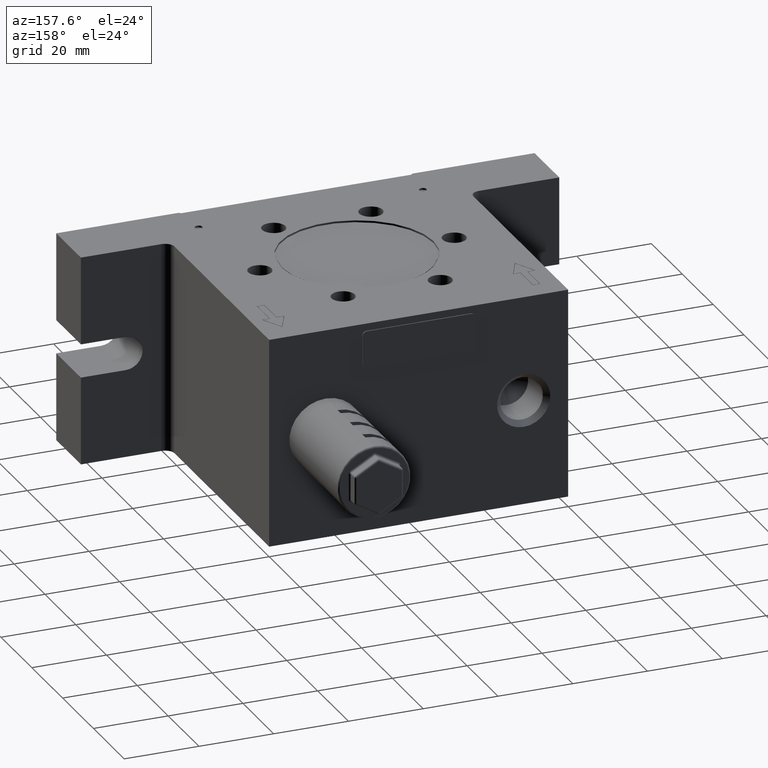
[diagram: clean part render]
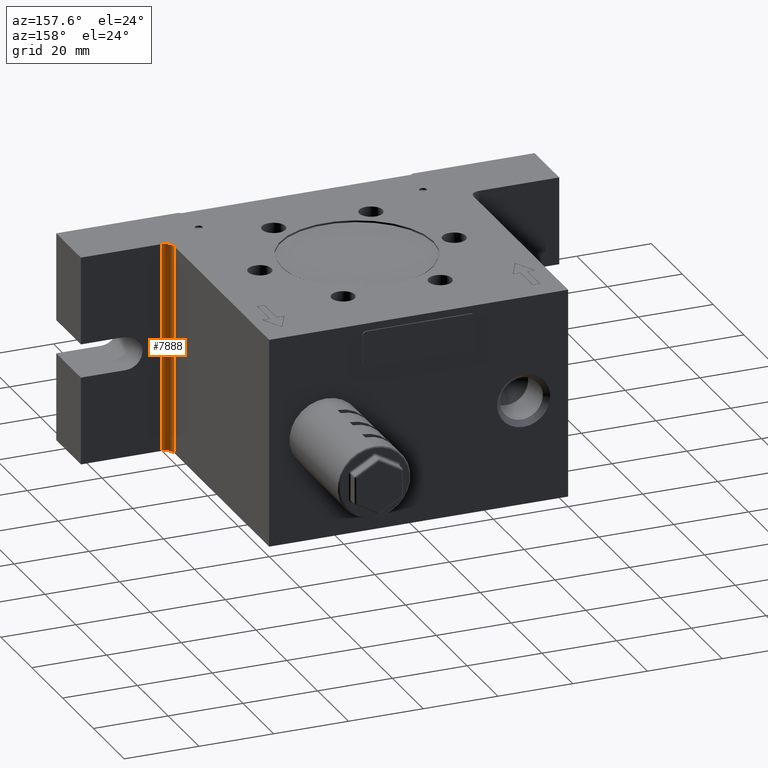
[diagram: same view with one face highlighted and labeled with its STEP entity id]
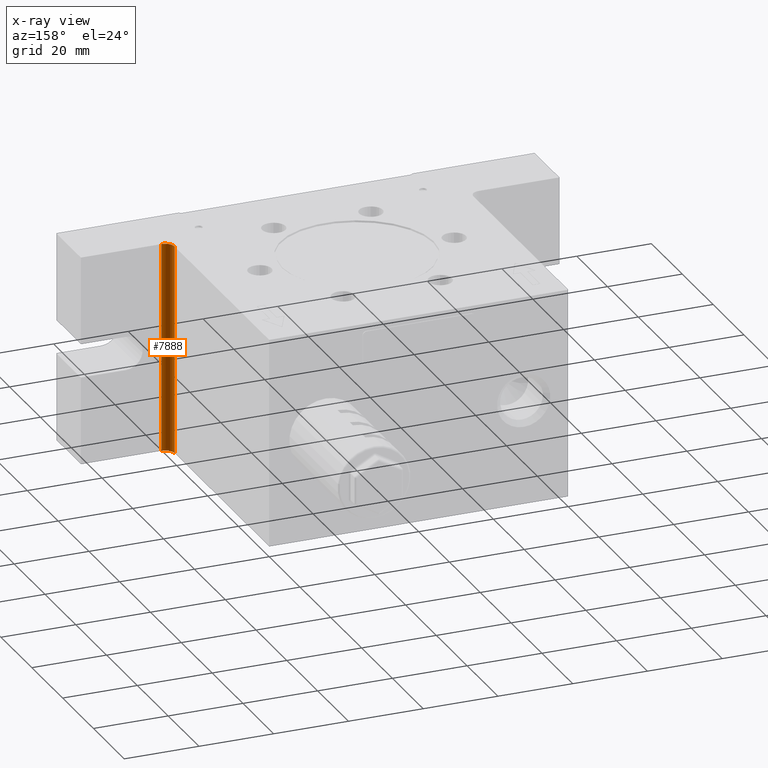
[diagram: x-ray of the same camera — body ghosted, the highlighted face saturated]
A machine part, auxiliary view. The second image highlights one B-rep face of the part: STEP entity #7888.
The next image is the same camera in x-ray: the body ghosted, the highlighted face saturated — about 0% of this face is hidden behind the body in this view.
In plain terms, the highlighted cylindrical surface (edge-blend (fillet) strip) has radius 2.5 mm, axis along (0, 0, -1).
Its self-contained STEP definition (entity closure, byte-faithful):
#212 = VERTEX_POINT ( 'NONE', #7915 ) ;
#536 = CARTESIAN_POINT ( 'NONE',  ( 42.50000000000000000, -21.50000000000000000, -28.00000000000000000 ) ) ;
#851 = LINE ( 'NONE', #16173, #9256 ) ;
#952 = CARTESIAN_POINT ( 'NONE',  ( 42.50000000000000000, -24.00000000000000000, 28.00000000000000000 ) ) ;
#1030 = ORIENTED_EDGE ( 'NONE', *, *, #12170, .F. ) ;
#1037 = CARTESIAN_POINT ( 'NONE',  ( 40.00000000000000000, -21.50000000000000000, 28.00000000000000000 ) ) ;
#1146 = EDGE_CURVE ( 'NONE', #212, #8416, #16660, .T. ) ;
#2496 = VERTEX_POINT ( 'NONE', #1037 ) ;
#2811 = CYLINDRICAL_SURFACE ( 'NONE', #12307, 2.500000000000002200 ) ;
#3250 = DIRECTION ( 'NONE',  ( -1.000000000000000000, 0.0000000000000000000, 0.0000000000000000000 ) ) ;
#3633 = DIRECTION ( 'NONE',  ( 0.0000000000000000000, 0.0000000000000000000, -1.000000000000000000 ) ) ;
#3904 = DIRECTION ( 'NONE',  ( -1.000000000000000000, 0.0000000000000000000, 0.0000000000000000000 ) ) ;
#3978 = DIRECTION ( 'NONE',  ( 0.0000000000000000000, 0.0000000000000000000, -1.000000000000000000 ) ) ;
#5003 = DIRECTION ( 'NONE',  ( -0.0000000000000000000, -0.0000000000000000000, 1.000000000000000000 ) ) ;
#5604 = EDGE_CURVE ( 'NONE', #8416, #2496, #12551, .T. ) ;
#5952 = ORIENTED_EDGE ( 'NONE', *, *, #5604, .F. ) ;
#6088 = CARTESIAN_POINT ( 'NONE',  ( 42.50000000000000000, -24.00000000000000000, 28.00000000000000000 ) ) ;
#6159 = DIRECTION ( 'NONE',  ( 0.0000000000000000000, 0.0000000000000000000, 1.000000000000000000 ) ) ;
#6782 = EDGE_CURVE ( 'NONE', #20316, #212, #19631, .T. ) ;
#7888 = ADVANCED_FACE ( 'NONE', ( #21701 ), #2811, .F. ) ;
#7915 = CARTESIAN_POINT ( 'NONE',  ( 42.50000000000000000, -24.00000000000000000, -28.00000000000000000 ) ) ;
#8416 = VERTEX_POINT ( 'NONE', #952 ) ;
#8490 = DIRECTION ( 'NONE',  ( -1.000000000000000000, 0.0000000000000000000, 0.0000000000000000000 ) ) ;
#8708 = CARTESIAN_POINT ( 'NONE',  ( 42.50000000000000000, -21.50000000000000000, 28.00000000000000000 ) ) ;
#9256 = VECTOR ( 'NONE', #17953, 1000.000000000000000 ) ;
#10030 = EDGE_LOOP ( 'NONE', ( #13682, #1030, #5952, #13986 ) ) ;
#10095 = VECTOR ( 'NONE', #6159, 1000.000000000000000 ) ;
#12170 = EDGE_CURVE ( 'NONE', #2496, #20316, #851, .T. ) ;
#12307 = AXIS2_PLACEMENT_3D ( 'NONE', #536, #3978, #3904 ) ;
#12551 = CIRCLE ( 'NONE', #21658, 2.500000000000002200 ) ;
#13682 = ORIENTED_EDGE ( 'NONE', *, *, #6782, .F. ) ;
#13986 = ORIENTED_EDGE ( 'NONE', *, *, #1146, .F. ) ;
#16173 = CARTESIAN_POINT ( 'NONE',  ( 40.00000000000000000, -21.50000000000000000, -28.00000000000000000 ) ) ;
#16660 = LINE ( 'NONE', #6088, #10095 ) ;
#17953 = DIRECTION ( 'NONE',  ( -0.0000000000000000000, -0.0000000000000000000, -1.000000000000000000 ) ) ;
#18939 = AXIS2_PLACEMENT_3D ( 'NONE', #20042, #5003, #3250 ) ;
#19631 = CIRCLE ( 'NONE', #18939, 2.500000000000002200 ) ;
#20042 = CARTESIAN_POINT ( 'NONE',  ( 42.50000000000000000, -21.50000000000000000, -28.00000000000000000 ) ) ;
#20316 = VERTEX_POINT ( 'NONE', #21001 ) ;
#21001 = CARTESIAN_POINT ( 'NONE',  ( 40.00000000000000000, -21.50000000000000000, -28.00000000000000000 ) ) ;
#21658 = AXIS2_PLACEMENT_3D ( 'NONE', #8708, #3633, #8490 ) ;
#21701 = FACE_OUTER_BOUND ( 'NONE', #10030, .T. ) ;